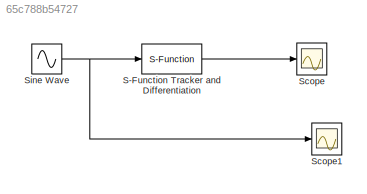
MODEL slx_65c788b54727
KIND model
BLOCK [S-Function] S-Function Tracker and Differentiation
  EnableBusSupport = off
  FunctionName = han_td
  Parameters = r,h,T
  Ports = [1, 1]
BLOCK [Scope] Scope
  Floating = off
  NumInputPorts = 1
  Ports = [1]
  ShowLegends = off
BLOCK [Scope] Scope1
  Floating = off
  NumInputPorts = 1
  Ports = [1]
  SaveName = ScopeData1
  ShowLegends = off
BLOCK [Sin] Sine Wave
  Ports = [0, 1]
  SampleTime = 0
LINE S-Function Tracker and Differentiation:1 -> Scope:1
NET Sine Wave:1 -> S-Function Tracker and Differentiation:1, Scope1:1
note: NET lines group one-source signal fan-out (src -> all destinations, sorted); 1:1 wires keep LINE
